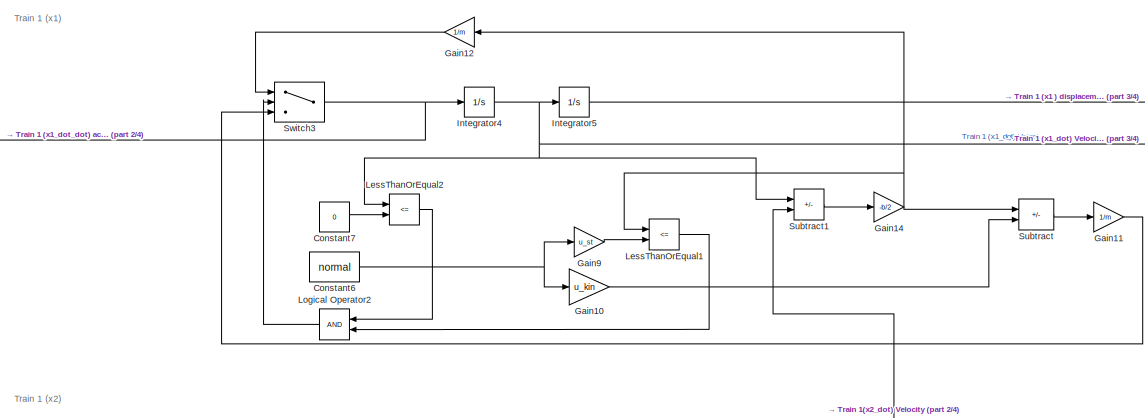
[diagram: root canvas - part 1/4, top center region]
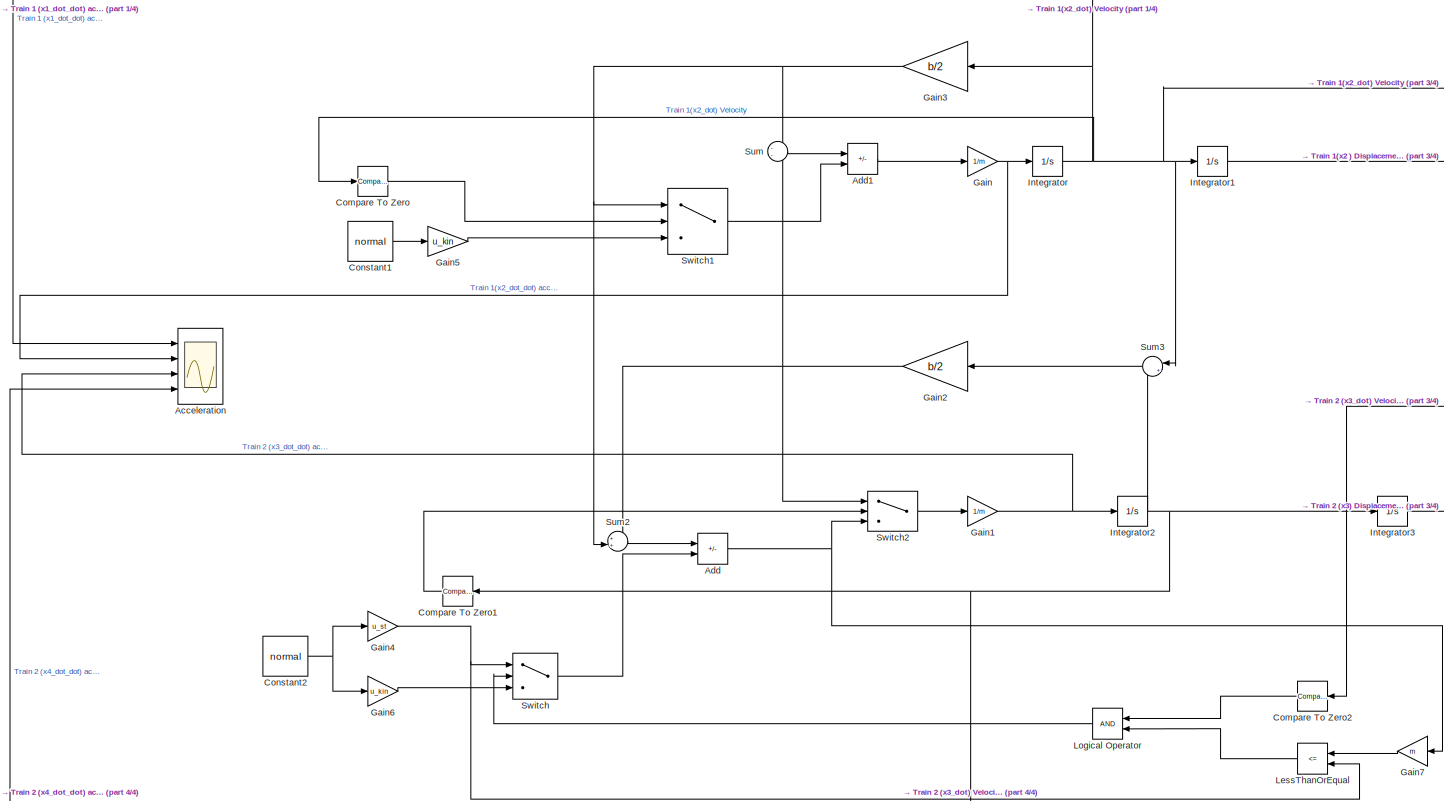
[diagram: root canvas - part 2/4, full width, middle band]
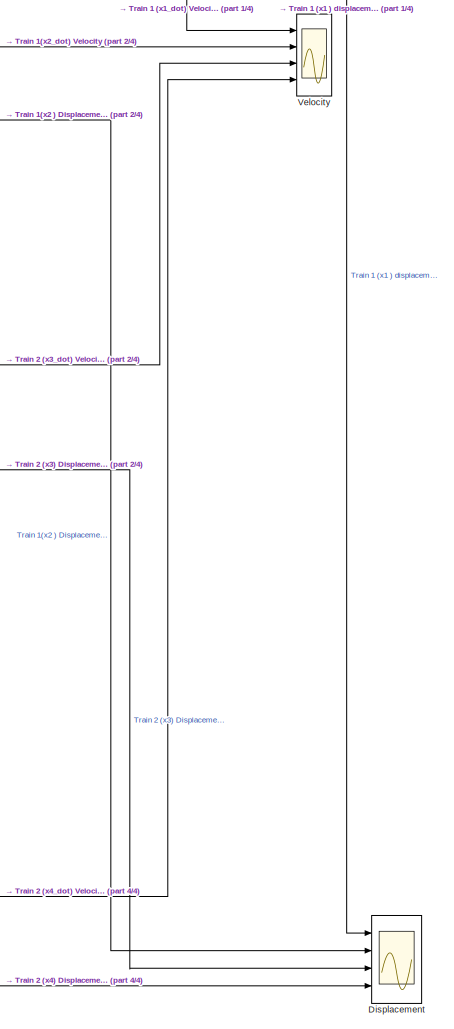
[diagram: root canvas - part 3/4, middle right region]
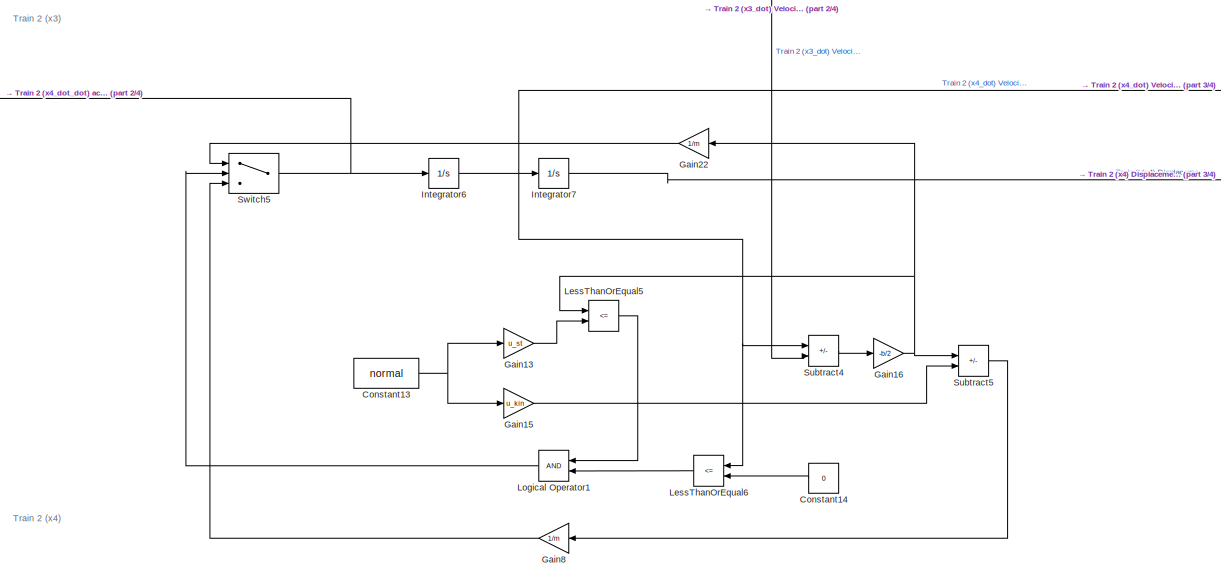
[diagram: root canvas - part 4/4, bottom center region]
MODEL slx_eebe491ba786
KIND model
CONFIG AbsTol = auto
CONFIG EnableMultiTasking = off
CONFIG FixedStep = 0.001
CONFIG MaxStep = auto
CONFIG MinStep = auto
CONFIG RelTol = 1e-6
CONFIG SampleTimeConstraint = Unconstrained
CONFIG Solver = ode4
CONFIG SolverName = ode4
CONFIG StartTime = 0.0
CONFIG StopTime = 15
BLOCK [Scope] Acceleration
  Floating = off
  NumInputPorts = 4
  Ports = [4]
  ScopeSpecificationString = Simulink.scopes.TimeScopeBlockCfg('CurrentConfiguration', extmgr.ConfigurationSet(extmgr.Configuration('Core','General UI',true),extmgr.Configuration('Core','Source UI',true),extmgr.Configuration('Sources','WiredSimulink',true),extmgr.Configuration('Visuals','Time Domain',true,'SerializedDisplays',{struct('MinYLimReal','-43.9121','MaxYLimReal','42.80393','YLabelReal','','MinYLimMag','0.00000','Max...<+2003ch>
BLOCK [Sum] Add
  IconShape = rectangular
  Inputs = +-
  Ports = [2, 1]
BLOCK [Sum] Add1
  IconShape = rectangular
  Inputs = +-
  Ports = [2, 1]
BLOCK [Reference] Compare To Zero  REF=simulink/Logic and Bit
Operations/Compare
To Zero
  Ports = [1, 1]
  SourceBlock = simulink/Logic and Bit\nOperations/Compare\nTo Zero
  SourceProductBaseCode = SL
  SourceType = Compare To Zero
BLOCK [Reference] Compare To Zero1  REF=simulink/Logic and Bit
Operations/Compare
To Zero
  Ports = [1, 1]
  SourceBlock = simulink/Logic and Bit\nOperations/Compare\nTo Zero
  SourceProductBaseCode = SL
  SourceType = Compare To Zero
BLOCK [Reference] Compare To Zero2  REF=simulink/Logic and Bit
Operations/Compare
To Zero
  Ports = [1, 1]
  SourceBlock = simulink/Logic and Bit\nOperations/Compare\nTo Zero
  SourceProductBaseCode = SL
  SourceType = Compare To Zero
BLOCK [Constant] Constant1
  Value = normal
BLOCK [Constant] Constant13
  Value = normal
BLOCK [Constant] Constant14
  Value = 0
BLOCK [Constant] Constant2
  Value = normal
BLOCK [Constant] Constant6
  Value = normal
BLOCK [Constant] Constant7
  Value = 0
BLOCK [Scope] Displacement
  Floating = off
  NumInputPorts = 4
  Ports = [4]
  ScopeSpecificationString = Simulink.scopes.TimeScopeBlockCfg('CurrentConfiguration', extmgr.ConfigurationSet(extmgr.Configuration('Core','General UI',true),extmgr.Configuration('Core','Source UI',true),extmgr.Configuration('Sources','WiredSimulink',true,'DataLoggingVariableName','ScopeData3'),extmgr.Configuration('Visuals','Time Domain',true,'SerializedDisplays',{struct('MinYLimReal','34.04884','MaxYLimReal','193.56042','YL...<+2020ch>
BLOCK [Gain] Gain
  Gain = 1/m
BLOCK [Gain] Gain1
  Gain = 1/m
BLOCK [Gain] Gain10
  Gain = u_kin
BLOCK [Gain] Gain11
  Gain = 1/m
BLOCK [Gain] Gain12
  Gain = 1/m
BLOCK [Gain] Gain13
  Gain = u_st
BLOCK [Gain] Gain14
  Gain = -b/2
BLOCK [Gain] Gain15
  Gain = u_kin
BLOCK [Gain] Gain16
  Gain = -b/2
BLOCK [Gain] Gain2
  Gain = b/2
BLOCK [Gain] Gain22
  Gain = 1/m
BLOCK [Gain] Gain3
  Gain = b/2
BLOCK [Gain] Gain4
  Gain = u_st
BLOCK [Gain] Gain5
  Gain = u_kin
BLOCK [Gain] Gain6
  Gain = u_kin
BLOCK [Gain] Gain7
  Gain = m
BLOCK [Gain] Gain8
  Gain = 1/m
BLOCK [Gain] Gain9
  Gain = u_st
BLOCK [Integrator] Integrator
  InitialCondition = 13.9
  Ports = [1, 1]
BLOCK [Integrator] Integrator1
  InitialCondition = 50
  Ports = [1, 1]
BLOCK [Integrator] Integrator2
  Ports = [1, 1]
BLOCK [Integrator] Integrator3
  InitialCondition = 50
  Ports = [1, 1]
BLOCK [Integrator] Integrator4
  InitialCondition = 13.9
  Ports = [1, 1]
BLOCK [Integrator] Integrator5
  InitialCondition = 50
  Ports = [1, 1]
BLOCK [Integrator] Integrator6
  Ports = [1, 1]
BLOCK [Integrator] Integrator7
  InitialCondition = 50
  Ports = [1, 1]
BLOCK [RelationalOperator] LessThanOrEqual
  InputSameDT = off
  Operator = <=
  OutDataTypeStr = boolean
  Ports = [2, 1]
  RndMeth = Simplest
BLOCK [RelationalOperator] LessThanOrEqual1
  InputSameDT = off
  Operator = <=
  OutDataTypeStr = boolean
  Ports = [2, 1]
  RndMeth = Simplest
BLOCK [RelationalOperator] LessThanOrEqual2
  InputSameDT = off
  Operator = <=
  OutDataTypeStr = boolean
  Ports = [2, 1]
  RndMeth = Simplest
BLOCK [RelationalOperator] LessThanOrEqual5
  InputSameDT = off
  Operator = <=
  OutDataTypeStr = boolean
  Ports = [2, 1]
  RndMeth = Simplest
BLOCK [RelationalOperator] LessThanOrEqual6
  InputSameDT = off
  Operator = <=
  OutDataTypeStr = boolean
  Ports = [2, 1]
  RndMeth = Simplest
BLOCK [Logic] Logical Operator
  AllPortsSameDT = off
  OutDataTypeStr = boolean
  Ports = [2, 1]
BLOCK [Logic] Logical Operator1
  AllPortsSameDT = off
  OutDataTypeStr = boolean
  Ports = [2, 1]
BLOCK [Logic] Logical Operator2
  AllPortsSameDT = off
  OutDataTypeStr = boolean
  Ports = [2, 1]
BLOCK [Sum] Subtract
  IconShape = rectangular
  Inputs = +-
  Ports = [2, 1]
BLOCK [Sum] Subtract1
  IconShape = rectangular
  Inputs = +-
  Ports = [2, 1]
BLOCK [Sum] Subtract4
  IconShape = rectangular
  Inputs = +-
  Ports = [2, 1]
BLOCK [Sum] Subtract5
  IconShape = rectangular
  Inputs = +-
  Ports = [2, 1]
BLOCK [Sum] Sum
  Inputs = --
  Ports = [2, 1]
BLOCK [Sum] Sum2
  Inputs = ++|
  Ports = [2, 1]
BLOCK [Sum] Sum3
  Inputs = |+-
  Ports = [2, 1]
BLOCK [Switch] Switch
  Criteria = u2 > Threshold
  InputSameDT = off
  SaturateOnIntegerOverflow = off
BLOCK [Switch] Switch1
  Criteria = u2 > Threshold
  InputSameDT = off
  SaturateOnIntegerOverflow = off
BLOCK [Switch] Switch2
  Criteria = u2 > Threshold
  InputSameDT = off
  SaturateOnIntegerOverflow = off
BLOCK [Switch] Switch3
  InputSameDT = off
  SaturateOnIntegerOverflow = off
  Threshold = 1
BLOCK [Switch] Switch5
  Criteria = u2 > Threshold
  InputSameDT = off
  SaturateOnIntegerOverflow = off
BLOCK [Scope] Velocity
  Floating = off
  NumInputPorts = 4
  Ports = [4]
  ScopeSpecificationString = Simulink.scopes.TimeScopeBlockCfg('CurrentConfiguration', extmgr.ConfigurationSet(extmgr.Configuration('Core','General UI',true),extmgr.Configuration('Core','Source UI',true),extmgr.Configuration('Sources','WiredSimulink',true,'DataLoggingVariableName','ScopeData2'),extmgr.Configuration('Visuals','Time Domain',true,'SerializedDisplays',{struct('MinYLimReal','-1.73777','MaxYLimReal','15.63753','YLa...<+2012ch>
ANNOTATION (root): Train 1 (x1)
ANNOTATION (root): Train 1 (x2)
ANNOTATION (root): Train 2 (x3)
ANNOTATION (root): Train 2 (x4)
LINE Add1:1 -> Gain:1
NET Add:1 -> Gain7:1, Switch2:3
LINE Compare To Zero1:1 -> Switch2:2
LINE Compare To Zero2:1 -> Logical Operator:1
LINE Compare To Zero:1 -> Switch1:2
NET Constant13:1 -> Gain13:1, Gain15:1
LINE Constant14:1 -> LessThanOrEqual6:2
LINE Constant1:1 -> Gain5:1
NET Constant2:1 -> Gain4:1, Gain6:1
NET Constant6:1 -> Gain10:1, Gain9:1
LINE Constant7:1 -> LessThanOrEqual2:2
LINE Gain10:1 -> Subtract:2
LINE Gain11:1 -> Switch3:3
LINE Gain12:1 -> Switch3:1
LINE Gain13:1 -> LessThanOrEqual5:2
NET Gain14:1 -> Gain12:1, LessThanOrEqual1:1, Subtract:1
LINE Gain15:1 -> Subtract5:2
NET Gain16:1 -> Gain22:1, LessThanOrEqual5:1, Subtract5:1
NET Gain1:1 -> Acceleration:3, Integrator2:1
LINE Gain22:1 -> Switch5:1
NET Gain2:1 -> Sum2:1, Sum:2, Switch2:1
NET Gain3:1 -> Sum2:2, Sum:1, Switch1:1
NET Gain4:1 -> LessThanOrEqual:2, Switch:1
LINE Gain5:1 -> Switch1:3
LINE Gain6:1 -> Switch:3
LINE Gain7:1 -> LessThanOrEqual:1
LINE Gain8:1 -> Switch5:3
LINE Gain9:1 -> LessThanOrEqual1:2
NET Gain:1 -> Acceleration:2, Integrator:1
LINE Integrator1:1 -> Displacement:2
NET Integrator2:1 -> Compare To Zero1:1, Compare To Zero2:1, Integrator3:1, Subtract4:2, Sum3:2, Velocity:3
LINE Integrator3:1 -> Displacement:3
NET Integrator4:1 -> Integrator5:1, LessThanOrEqual2:1, Subtract1:1, Velocity:1
LINE Integrator5:1 -> Displacement:1
NET Integrator6:1 -> Integrator7:1, LessThanOrEqual6:1, Subtract4:1, Velocity:4
LINE Integrator7:1 -> Displacement:4
NET Integrator:1 -> Compare To Zero:1, Gain3:1, Integrator1:1, Subtract1:2, Sum3:1, Velocity:2
LINE LessThanOrEqual1:1 -> Logical Operator2:2
LINE LessThanOrEqual2:1 -> Logical Operator2:1
LINE LessThanOrEqual5:1 -> Logical Operator1:1
LINE LessThanOrEqual6:1 -> Logical Operator1:2
LINE LessThanOrEqual:1 -> Logical Operator:2
LINE Logical Operator1:1 -> Switch5:2
LINE Logical Operator2:1 -> Switch3:2
LINE Logical Operator:1 -> Switch:2
LINE Subtract1:1 -> Gain14:1
LINE Subtract4:1 -> Gain16:1
LINE Subtract5:1 -> Gain8:1
LINE Subtract:1 -> Gain11:1
LINE Sum2:1 -> Add:1
LINE Sum3:1 -> Gain2:1
LINE Sum:1 -> Add1:1
LINE Switch1:1 -> Add1:2
LINE Switch2:1 -> Gain1:1
NET Switch3:1 -> Acceleration:1, Integrator4:1
NET Switch5:1 -> Acceleration:4, Integrator6:1
LINE Switch:1 -> Add:2
note: NET lines group one-source signal fan-out (src -> all destinations, sorted); 1:1 wires keep LINE
